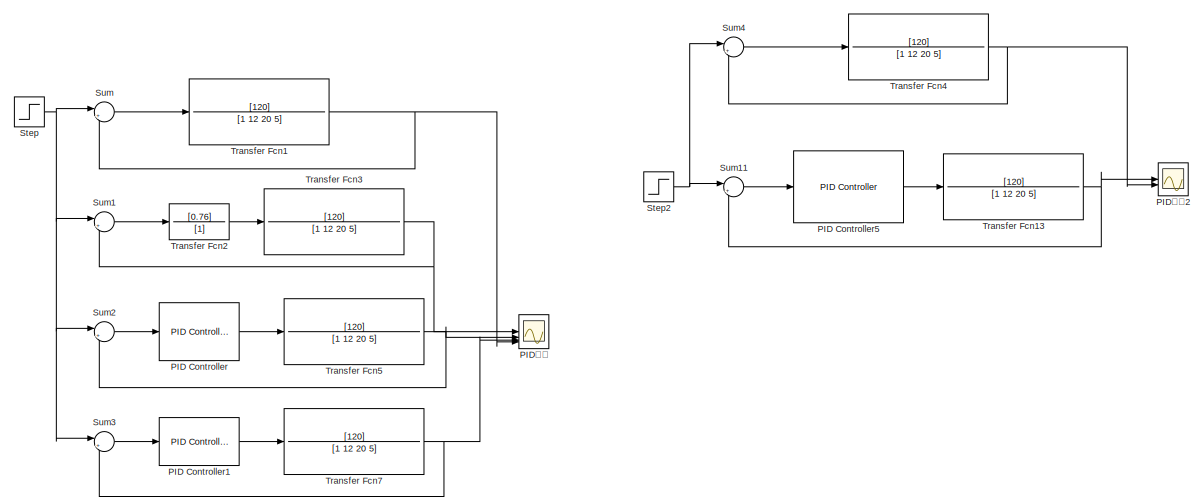
[diagram: root canvas - part 1/2, left side, full height]
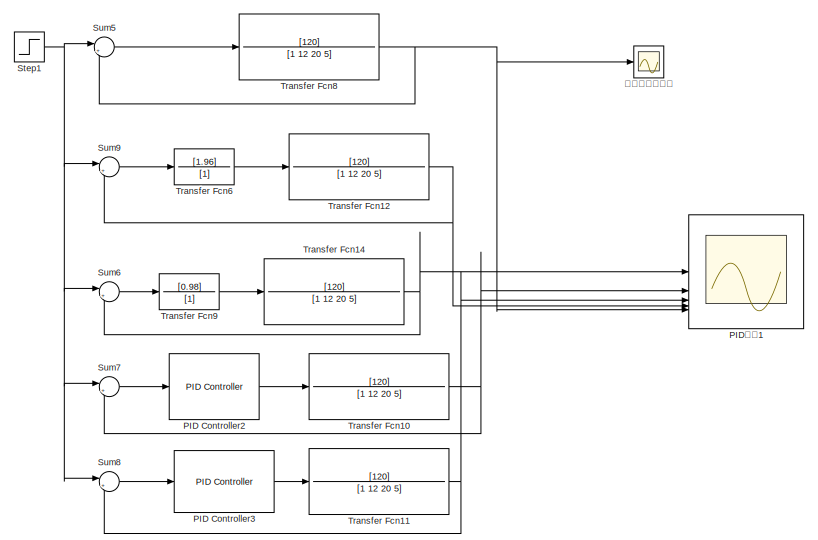
[diagram: root canvas - part 2/2, right side, full height]
MODEL slx_956ac6adaeae
KIND model
CONFIG AbsTol = auto
CONFIG EnableMultiTasking = off
CONFIG FixedStep = auto
CONFIG MaxStep = auto
CONFIG MinStep = auto
CONFIG RelTol = 1e-3
CONFIG SampleTimeConstraint = Unconstrained
CONFIG SolverName = VariableStepAuto
CONFIG StartTime = 0.0
CONFIG StopTime = 10.0
BLOCK [Reference] PID Controller  REF=slpidlib/PID Controller
  LibrarySourceBlock = simulink/Continuous/PID Controller
  SourceBlock = slpidlib/PID Controller
  SourceType = PID 1dof
BLOCK [Reference] PID Controller1  REF=slpidlib/PID Controller
  LibrarySourceBlock = simulink/Continuous/PID Controller
  SourceBlock = slpidlib/PID Controller
  SourceType = PID 1dof
BLOCK [Reference] PID Controller2  REF=slpidlib/PID Controller
  LibrarySourceBlock = simulink/Continuous/PID Controller
  SourceBlock = slpidlib/PID Controller
  SourceType = PID 1dof
BLOCK [Reference] PID Controller3  REF=slpidlib/PID Controller
  LibrarySourceBlock = simulink/Continuous/PID Controller
  SourceBlock = slpidlib/PID Controller
  SourceType = PID 1dof
BLOCK [Reference] PID Controller5  REF=slpidlib/PID Controller
  LibrarySourceBlock = simulink/Continuous/PID Controller
  SourceBlock = slpidlib/PID Controller
  SourceType = PID 1dof
BLOCK [Scope] PID调节
  Floating = off
  NumInputPorts = 4
  ScopeSpecificationString = Simulink.scopes.TimeScopeBlockCfg('CurrentConfiguration', extmgr.ConfigurationSet(extmgr.Configuration('Core','General UI',true,'FigureColor',[0 0 0]),extmgr.Configuration('Core','Source UI',true),extmgr.Configuration('Sources','WiredSimulink',true,'SampleTime','0.01','DataLoggingVariableName','ScopeData1'),extmgr.Configuration('Visuals','Time Domain',true,'SerializedDisplays',{struct('MinYLimReal...<+2046ch>
BLOCK [Scope] PID调节1
  Floating = off
  NumInputPorts = 5
  ScopeSpecificationString = Simulink.scopes.TimeScopeBlockCfg('CurrentConfiguration', extmgr.ConfigurationSet(extmgr.Configuration('Core','General UI',true,'FigureColor',[0 0 0]),extmgr.Configuration('Core','Source UI',true),extmgr.Configuration('Sources','WiredSimulink',true,'SampleTime','0.01','DataLoggingVariableName','ScopeData3'),extmgr.Configuration('Visuals','Time Domain',true,'SerializedDisplays',{struct('MinYLimReal...<+1776ch>
BLOCK [Scope] PID调节2
  Floating = off
  NumInputPorts = 2
  ScopeSpecificationString = Simulink.scopes.TimeScopeBlockCfg('CurrentConfiguration', extmgr.ConfigurationSet(extmgr.Configuration('Core','General UI',true,'FigureColor',[0 0 0]),extmgr.Configuration('Core','Source UI',true),extmgr.Configuration('Sources','WiredSimulink',true,'SampleTime','0.01','DataLoggingVariableName','ScopeData2'),extmgr.Configuration('Visuals','Time Domain',true,'SerializedDisplays',{struct('MinYLimReal...<+1577ch>
BLOCK [Step] Step
  SampleTime = 0
BLOCK [Step] Step1
  SampleTime = 0
BLOCK [Step] Step2
  SampleTime = 0
BLOCK [Sum] Sum
  Inputs = |+-
BLOCK [Sum] Sum1
  Inputs = |+-
BLOCK [Sum] Sum11
  Inputs = |+-
BLOCK [Sum] Sum2
  Inputs = |+-
BLOCK [Sum] Sum3
  Inputs = |+-
BLOCK [Sum] Sum4
  Inputs = |+-
BLOCK [Sum] Sum5
  Inputs = |+-
BLOCK [Sum] Sum6
  Inputs = |+-
BLOCK [Sum] Sum7
  Inputs = |+-
BLOCK [Sum] Sum8
  Inputs = |+-
BLOCK [Sum] Sum9
  Inputs = |+-
BLOCK [TransferFcn] Transfer Fcn1
  Denominator = [1 12 20 5]
  Numerator = [120]
BLOCK [TransferFcn] Transfer Fcn10
  Denominator = [1 12 20 5]
  Numerator = [120]
BLOCK [TransferFcn] Transfer Fcn11
  Denominator = [1 12 20 5]
  Numerator = [120]
BLOCK [TransferFcn] Transfer Fcn12
  Denominator = [1 12 20 5]
  Numerator = [120]
BLOCK [TransferFcn] Transfer Fcn13
  Denominator = [1 12 20 5]
  Numerator = [120]
BLOCK [TransferFcn] Transfer Fcn14
  Denominator = [1 12 20 5]
  Numerator = [120]
BLOCK [TransferFcn] Transfer Fcn2
  Denominator = [1]
  Numerator = [0.76]
BLOCK [TransferFcn] Transfer Fcn3
  Denominator = [1 12 20 5]
  Numerator = [120]
BLOCK [TransferFcn] Transfer Fcn4
  Denominator = [1 12 20 5]
  Numerator = [120]
BLOCK [TransferFcn] Transfer Fcn5
  Denominator = [1 12 20 5]
  Numerator = [120]
BLOCK [TransferFcn] Transfer Fcn6
  Denominator = [1]
  Numerator = [1.96]
BLOCK [TransferFcn] Transfer Fcn7
  Denominator = [1 12 20 5]
  Numerator = [120]
BLOCK [TransferFcn] Transfer Fcn8
  Denominator = [1 12 20 5]
  Numerator = [120]
BLOCK [TransferFcn] Transfer Fcn9
  Denominator = [1]
  Numerator = [0.98]
BLOCK [Scope] 原系统临界比例
  Floating = off
  NumInputPorts = 1
  ScopeSpecificationString = Simulink.scopes.TimeScopeBlockCfg('CurrentConfiguration', extmgr.ConfigurationSet(extmgr.Configuration('Core','General UI',true,'FigureColor',[0 0 0]),extmgr.Configuration('Core','Source UI',true),extmgr.Configuration('Sources','WiredSimulink',true,'SampleTime','0.01','DataLoggingVariableName','ScopeData4'),extmgr.Configuration('Visuals','Time Domain',true,'SerializedDisplays',{struct('MinYLimReal...<+1582ch>
LINE PID Controller1:1 -> Transfer Fcn7:1
LINE PID Controller2:1 -> Transfer Fcn10:1
LINE PID Controller3:1 -> Transfer Fcn11:1
LINE PID Controller5:1 -> Transfer Fcn13:1
LINE PID Controller:1 -> Transfer Fcn5:1
NET Step1:1 -> Sum5:1, Sum6:1, Sum7:1, Sum8:1, Sum9:1
NET Step2:1 -> Sum11:1, Sum4:1
NET Step:1 -> Sum1:1, Sum2:1, Sum3:1, Sum:1
LINE Sum11:1 -> PID Controller5:1
LINE Sum1:1 -> Transfer Fcn2:1
LINE Sum2:1 -> PID Controller:1
LINE Sum3:1 -> PID Controller1:1
LINE Sum4:1 -> Transfer Fcn4:1
LINE Sum5:1 -> Transfer Fcn8:1
LINE Sum6:1 -> Transfer Fcn9:1
LINE Sum7:1 -> PID Controller2:1
LINE Sum8:1 -> PID Controller3:1
LINE Sum9:1 -> Transfer Fcn6:1
LINE Sum:1 -> Transfer Fcn1:1
NET Transfer Fcn10:1 -> PID调节1:2, Sum7:2
NET Transfer Fcn11:1 -> PID调节1:3, Sum8:2
NET Transfer Fcn12:1 -> PID调节1:4, Sum9:2
NET Transfer Fcn13:1 -> PID调节2:1, Sum11:2
NET Transfer Fcn14:1 -> PID调节1:1, Sum6:2
NET Transfer Fcn1:1 -> PID调节:4, Sum:2
LINE Transfer Fcn2:1 -> Transfer Fcn3:1
NET Transfer Fcn3:1 -> PID调节:1, Sum1:2
NET Transfer Fcn4:1 -> PID调节2:2, Sum4:2
NET Transfer Fcn5:1 -> PID调节:2, Sum2:2
LINE Transfer Fcn6:1 -> Transfer Fcn12:1
NET Transfer Fcn7:1 -> PID调节:3, Sum3:2
NET Transfer Fcn8:1 -> PID调节1:5, Sum5:2, 原系统临界比例:1
LINE Transfer Fcn9:1 -> Transfer Fcn14:1
note: NET lines group one-source signal fan-out (src -> all destinations, sorted); 1:1 wires keep LINE
